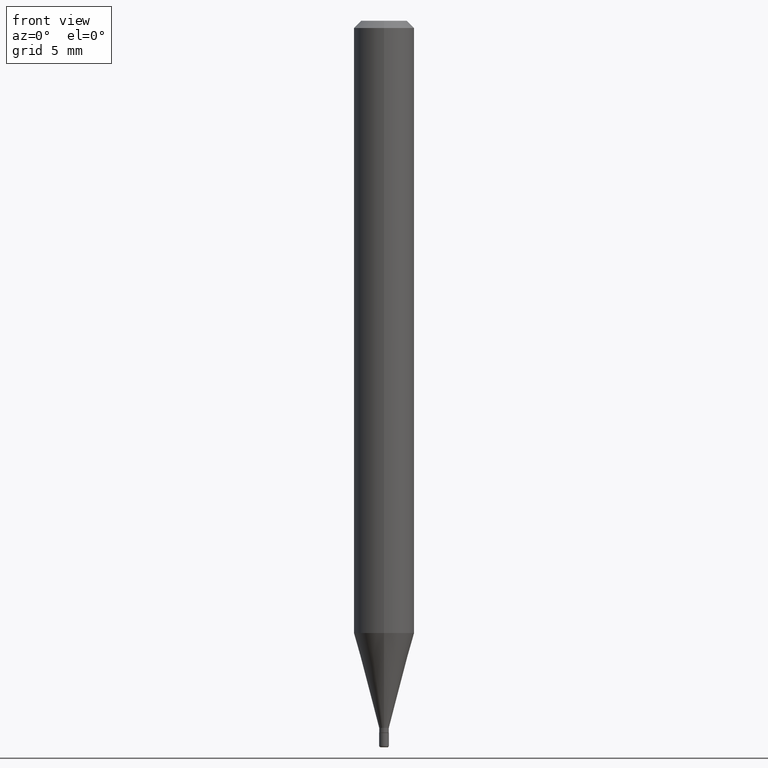
[diagram: clean part render]
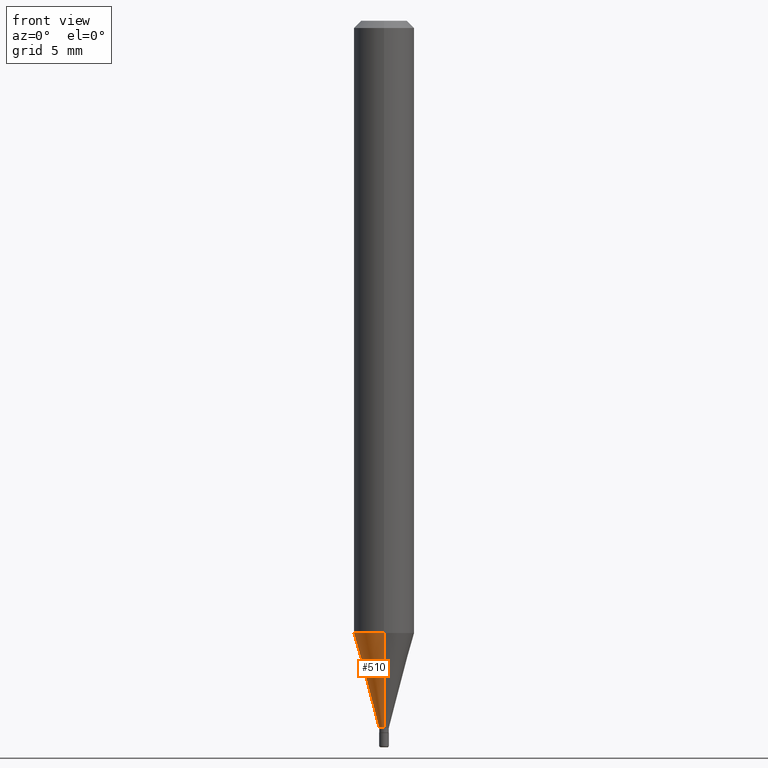
[diagram: same view with one face highlighted and labeled with its STEP entity id]
A machine part, front view. The second image highlights one B-rep face of the part: STEP entity #510.
In plain terms, the highlighted conical surface has half-angle 15 deg.
Its self-contained STEP definition (entity closure, byte-faithful):
#9 = DIRECTION ( 'NONE',  ( -6.982962677686265133E-15, -1.000000000000000000, 0.000000000000000000 ) ) ;
#11 = EDGE_CURVE ( 'NONE', #504, #69, #243, .T. ) ;
#31 = CONICAL_SURFACE ( 'NONE', #431, 0.009999999999999988065, 0.2617993877991492413 ) ;
#61 = CARTESIAN_POINT ( 'NONE',  ( -4.364351673553607559E-16, -0.06250000000000442701, -1.264067332602633487 ) ) ;
#64 = CARTESIAN_POINT ( 'NONE',  ( 7.105427357604560509E-17, 0.009999999999994891448, -1.459999999999999964 ) ) ;
#69 = VERTEX_POINT ( 'NONE', #499 ) ;
#82 = AXIS2_PLACEMENT_3D ( 'NONE', #387, #381, #495 ) ;
#89 = VERTEX_POINT ( 'NONE', #61 ) ;
#93 = DIRECTION ( 'NONE',  ( 1.839019923739593216E-15, 0.2588190451025239591, 0.9659258262890674240 ) ) ;
#98 = EDGE_LOOP ( 'NONE', ( #139, #266, #463, #427 ) ) ;
#111 = EDGE_CURVE ( 'NONE', #69, #89, #183, .T. ) ;
#127 = CARTESIAN_POINT ( 'NONE',  ( 2.575717417130697276E-16, 0.009999999999994891448, -1.459999999999999964 ) ) ;
#139 = ORIENTED_EDGE ( 'NONE', *, *, #426, .F. ) ;
#159 = DIRECTION ( 'NONE',  ( -2.445457269007472935E-29, 3.491497860738215272E-15, 1.000000000000000000 ) ) ;
#183 = LINE ( 'NONE', #344, #483 ) ;
#210 = VECTOR ( 'NONE', #93, 39.37007874015748143 ) ;
#212 = CARTESIAN_POINT ( 'NONE',  ( 3.570367612750911147E-29, -5.097586876677794968E-15, -1.459999999999999964 ) ) ;
#243 = CIRCLE ( 'NONE', #323, 0.009999999999999988065 ) ;
#266 = ORIENTED_EDGE ( 'NONE', *, *, #11, .T. ) ;
#271 = VERTEX_POINT ( 'NONE', #322 ) ;
#294 = FACE_OUTER_BOUND ( 'NONE', #98, .T. ) ;
#303 = DIRECTION ( 'NONE',  ( -2.445457269007472935E-29, 3.491497860738215272E-15, 1.000000000000000000 ) ) ;
#322 = CARTESIAN_POINT ( 'NONE',  ( 4.440892098500933817E-16, 0.06249999999999558686, -1.264067332602633931 ) ) ;
#323 = AXIS2_PLACEMENT_3D ( 'NONE', #493, #303, #457 ) ;
#344 = CARTESIAN_POINT ( 'NONE',  ( -6.982962677682687501E-17, -0.01000000000000508468, -1.459999999999999964 ) ) ;
#347 = CIRCLE ( 'NONE', #82, 0.06250000000000000000 ) ;
#381 = DIRECTION ( 'NONE',  ( -2.445457269007472935E-29, 3.491497860738215272E-15, 1.000000000000000000 ) ) ;
#387 = CARTESIAN_POINT ( 'NONE',  ( 3.091222647027998016E-29, -4.413488387611157354E-15, -1.264067332602633709 ) ) ;
#425 = LINE ( 'NONE', #64, #210 ) ;
#426 = EDGE_CURVE ( 'NONE', #504, #271, #425, .T. ) ;
#427 = ORIENTED_EDGE ( 'NONE', *, *, #430, .F. ) ;
#430 = EDGE_CURVE ( 'NONE', #271, #89, #347, .T. ) ;
#431 = AXIS2_PLACEMENT_3D ( 'NONE', #212, #159, #9 ) ;
#457 = DIRECTION ( 'NONE',  ( -6.982962677686265133E-15, -1.000000000000000000, 0.000000000000000000 ) ) ;
#463 = ORIENTED_EDGE ( 'NONE', *, *, #111, .T. ) ;
#474 = DIRECTION ( 'NONE',  ( -1.807323732225323040E-15, -0.2588190451025171868, 0.9659258262890693114 ) ) ;
#483 = VECTOR ( 'NONE', #474, 39.37007874015748854 ) ;
#493 = CARTESIAN_POINT ( 'NONE',  ( 3.570367612750911147E-29, -5.097586876677794968E-15, -1.459999999999999964 ) ) ;
#495 = DIRECTION ( 'NONE',  ( -6.982962677686265922E-15, -1.000000000000000000, 4.370956789862821150E-15 ) ) ;
#499 = CARTESIAN_POINT ( 'NONE',  ( -6.982962677682687501E-17, -0.01000000000000508468, -1.459999999999999964 ) ) ;
#504 = VERTEX_POINT ( 'NONE', #127 ) ;
#510 = ADVANCED_FACE ( 'NONE', ( #294 ), #31, .T. ) ;